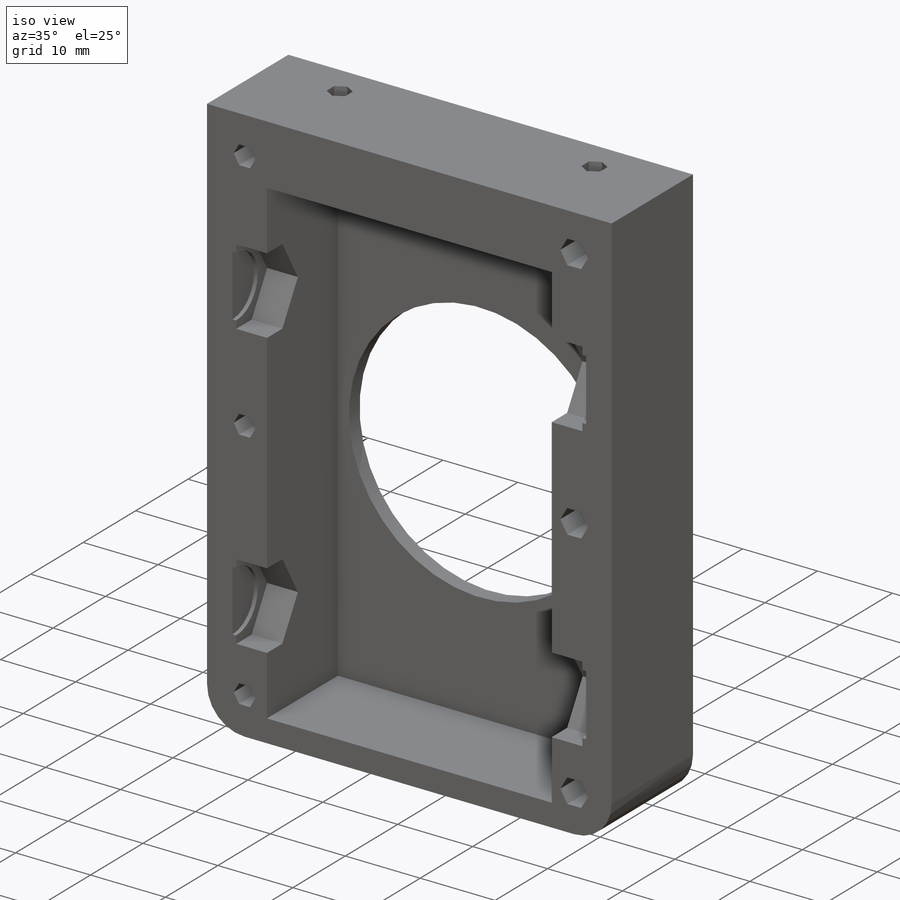
[diagram: iso view]
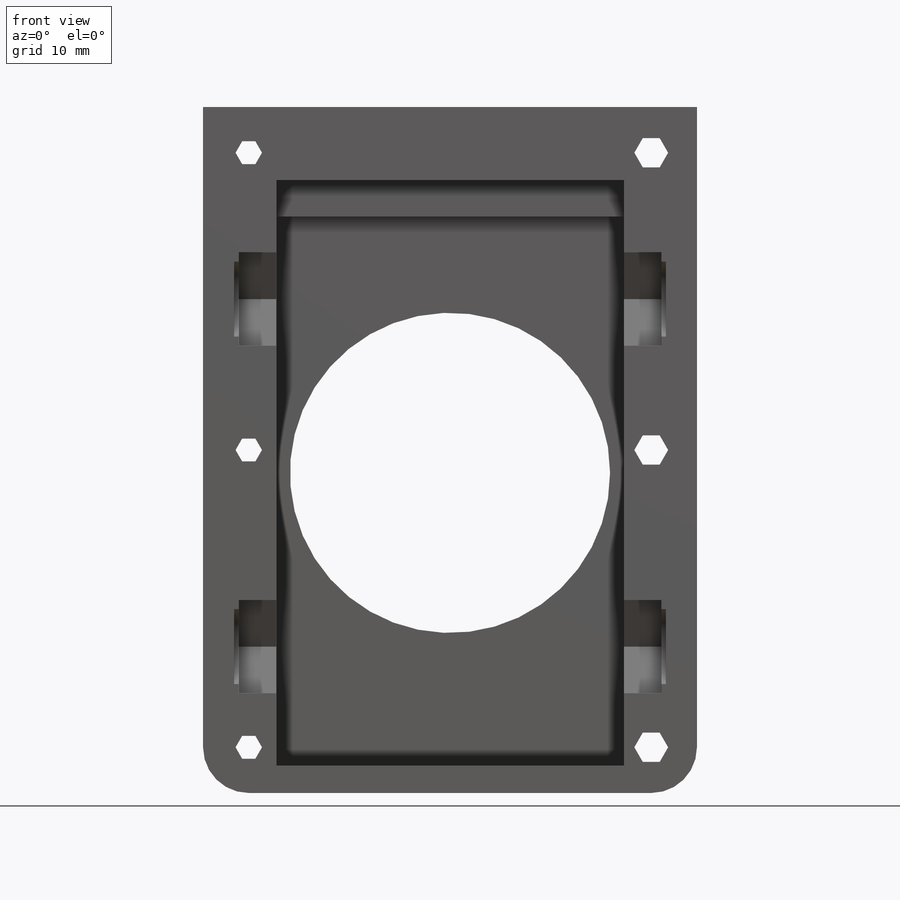
[diagram: front view]
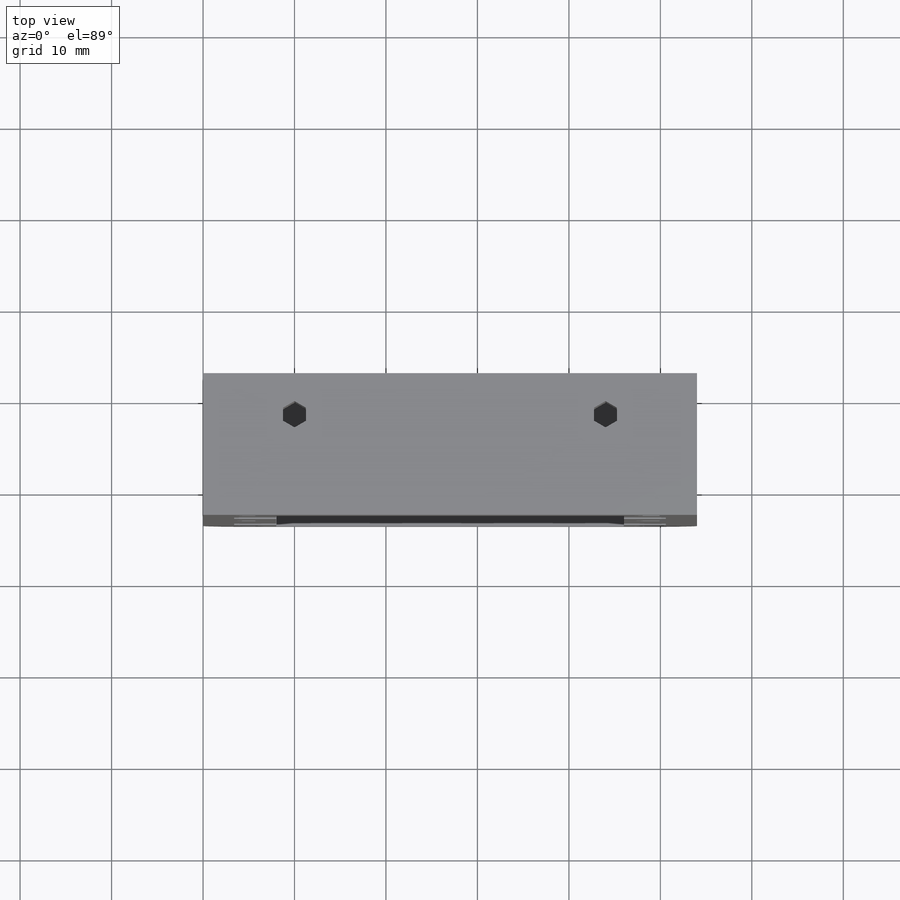
[diagram: top view]
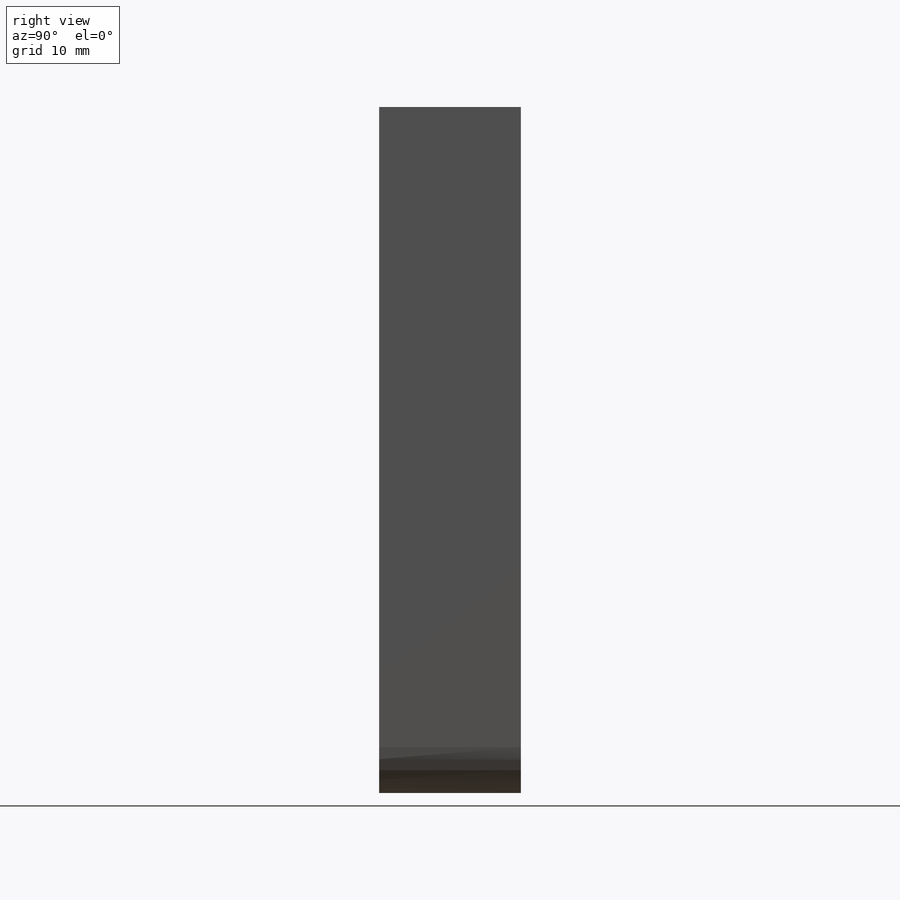
[diagram: right view]
SOLIDWORKS PART (.sldprt)
format: sldprt  version: not decoded by parser v0  size: 492,032 bytes
history: native  units: mm
features: sketch x12, cut_extrude x8, extrude x4, material x1, fillet x1 (+12 scaffold rows collapsed)
feature tree (38):
  scaffold x12  (default folders/planes/origin — collapsed)
  material  "Material <not specified>"
  sketch  "Sketch1"  dims[D1=75.0mm D2=54.0mm D3=8.0mm D4=8.0mm D5=3.0mm D6=8.0mm]
  extrude  "Boss-Extrude1"  Depth=27mm
  sketch  "Sketch2"  dims[c1.D1=18.0mm c1.D2=15.0mm c1.D3=10.2mm c1.D4=18.0mm c1.D5=15.0mm c1.D6=10.2mm c2.D1=19.0mm c2.D4=19.0mm c2.D2=13.5mm c2.D5=13.5mm]
  cut_extrude  "Cut-Extrude1"  Depth=4.1mm
  sketch  "Sketch5"  dims[c1.D1=8.2mm c1.D2=8.2mm c2.D1=8.2mm c2.D3=~4.734272mm]
  cut_extrude  "Cut-Extrude2"  Depth=0.5mm
  sketch  "Sketch6"  dims[c1.D1=19.0mm c1.D2=13.5mm c1.D3=19.0mm c1.D4=13.5mm c1.D5=10.2mm c1.D6=10.2mm c2.D1=19.0mm c2.D3=19.0mm c2.D7=64.0mm]
  cut_extrude  "Cut-Extrude3"  Depth=4.1mm
  sketch  "Sketch7"  dims[c1.D3=8.2mm c1.D1=19.0mm c1.D2=8.2mm c2.D3=20.0mm c2.D1=19.0mm c2.D2=20.0mm c2.D5=0.0mm c2.D6=2.4mm]
  cut_extrude  "Cut-Extrude4"  Depth=0.5mm
  sketch  "Sketch8"
  extrude  "Boss-Extrude2"  Depth=2mm
  sketch  "Sketch9"
  extrude  "Boss-Extrude3"  Depth=2mm
  sketch  "Sketch10"
  cut_extrude  "Cut-Extrude5"  Depth=15.5mm
  sketch  "Sketch11"  dims[c1.D1=35.0mm c1.D2=37.0mm c1.D3=19.0mm c2.D2=40.0mm c2.D3=27.0mm]
  cut_extrude  "Cut-Extrude6"  [1 undecoded]
  sketch  "Sketch12"  dims[c1.D1=2.5mm c1.D2=3.2mm c1.D3=5.0mm c1.D4=~8.966975mm c2.D4=90.0deg c3.D4=5.0mm c3.D5=5.0mm c3.D6=5.0mm c3.D7=5.0mm]
  cut_extrude  "Cut-Extrude7"  [1 undecoded]
  sketch  "Sketch14"  dims[D1=5.0mm]
  extrude  "Boss-Extrude4"  Depth=4mm
  sketch  "Sketch13"  dims[D1=11.0mm D2=11.0mm D3=10.0mm D4=10.0mm D5=2.5mm D6=2.5mm]
  cut_extrude  "Cut-Extrude8"  [1 undecoded]
  fillet  "Fillet1"  Radius=5mm
decode coverage: 19 of 25 modeling features carry decoded parameters
note: ~ marks probable driven/reference dimensions
note: 3 parameter values undecoded
summary: no parameter record found for 3 features
note: suppression state not decoded; provenance and decode notes live in map.json
